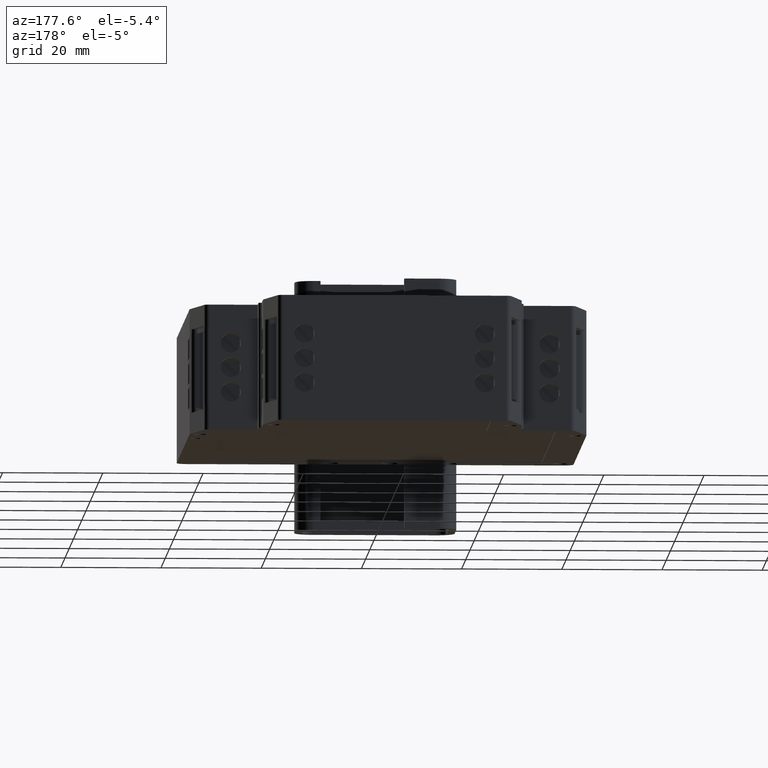
[diagram: clean part render]
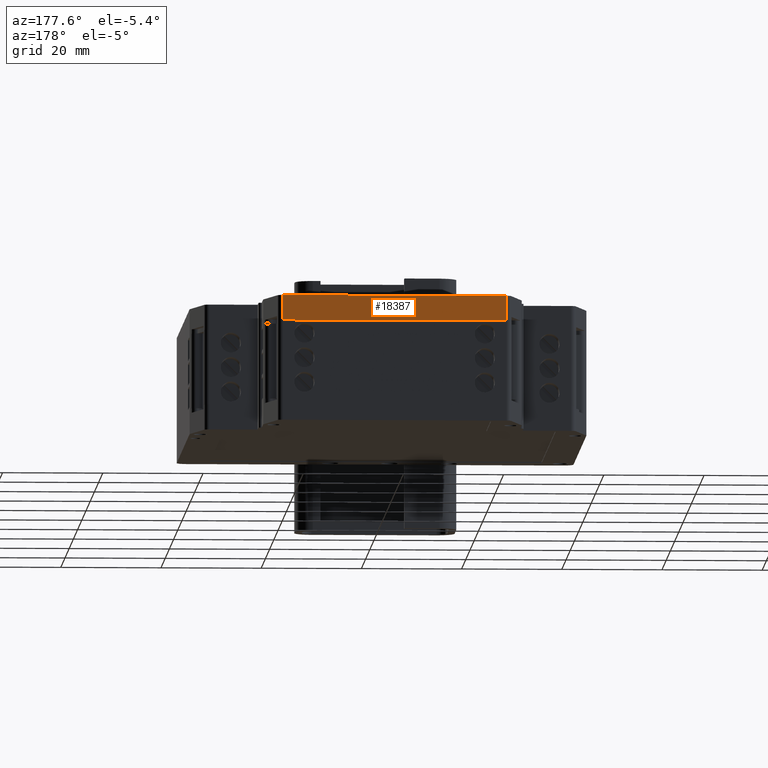
[diagram: same view with one face highlighted and labeled with its STEP entity id]
A machine part, auxiliary view. The second image highlights one B-rep face of the part: STEP entity #18387.
In plain terms, the highlighted planar face has unit normal (0, 1, 0).
Its self-contained STEP definition (entity closure, byte-faithful):
#18329=CARTESIAN_POINT('',(-219.178016852797010,223.722192974813030,-0.030000000000001));
#18330=VERTEX_POINT('',#18329);
#18338=CARTESIAN_POINT('',(-219.178016852797010,223.722192974813030,4.970000000000000));
#18339=VERTEX_POINT('',#18338);
#18340=CARTESIAN_POINT('',(-219.178016852797010,223.722192974813030,-0.030000000000001));
#18341=DIRECTION('',(0.0,0.0,1.0));
#18342=VECTOR('',#18341,5.000000000000001);
#18343=LINE('',#18340,#18342);
#18344=EDGE_CURVE('',#18330,#18339,#18343,.T.);
#18357=CARTESIAN_POINT('',(-266.119697136986930,223.722192974813030,5.220000000000000));
#18358=DIRECTION('',(0.0,1.0,0.0));
#18359=DIRECTION('',(0.0,0.0,1.0));
#18360=AXIS2_PLACEMENT_3D('',#18357,#18358,#18359);
#18361=PLANE('',#18360);
#18362=CARTESIAN_POINT('',(-263.884379028215960,223.722192974813030,-0.030000000000001));
#18363=VERTEX_POINT('',#18362);
#18364=CARTESIAN_POINT('',(-263.884379028215960,223.722192974813030,-0.030000000000001));
#18365=DIRECTION('',(1.0,0.0,0.0));
#18366=VECTOR('',#18365,44.706362175418946);
#18367=LINE('',#18364,#18366);
#18368=EDGE_CURVE('',#18363,#18330,#18367,.T.);
#18369=ORIENTED_EDGE('',*,*,#18368,.F.);
#18370=CARTESIAN_POINT('',(-263.884379028215960,223.722192974813030,4.970000000000000));
#18371=VERTEX_POINT('',#18370);
#18372=CARTESIAN_POINT('',(-263.884379028215960,223.722192974813030,-0.030000000000001));
#18373=DIRECTION('',(0.0,0.0,1.0));
#18374=VECTOR('',#18373,5.000000000000001);
#18375=LINE('',#18372,#18374);
#18376=EDGE_CURVE('',#18363,#18371,#18375,.T.);
#18377=ORIENTED_EDGE('',*,*,#18376,.T.);
#18378=CARTESIAN_POINT('',(-263.884379028215960,223.722192974813030,4.970000000000000));
#18379=DIRECTION('',(1.0,0.0,0.0));
#18380=VECTOR('',#18379,44.706362175418946);
#18381=LINE('',#18378,#18380);
#18382=EDGE_CURVE('',#18371,#18339,#18381,.T.);
#18383=ORIENTED_EDGE('',*,*,#18382,.T.);
#18384=ORIENTED_EDGE('',*,*,#18344,.F.);
#18385=EDGE_LOOP('',(#18369,#18377,#18383,#18384));
#18386=FACE_OUTER_BOUND('',#18385,.T.);
#18387=ADVANCED_FACE('',(#18386),#18361,.T.);